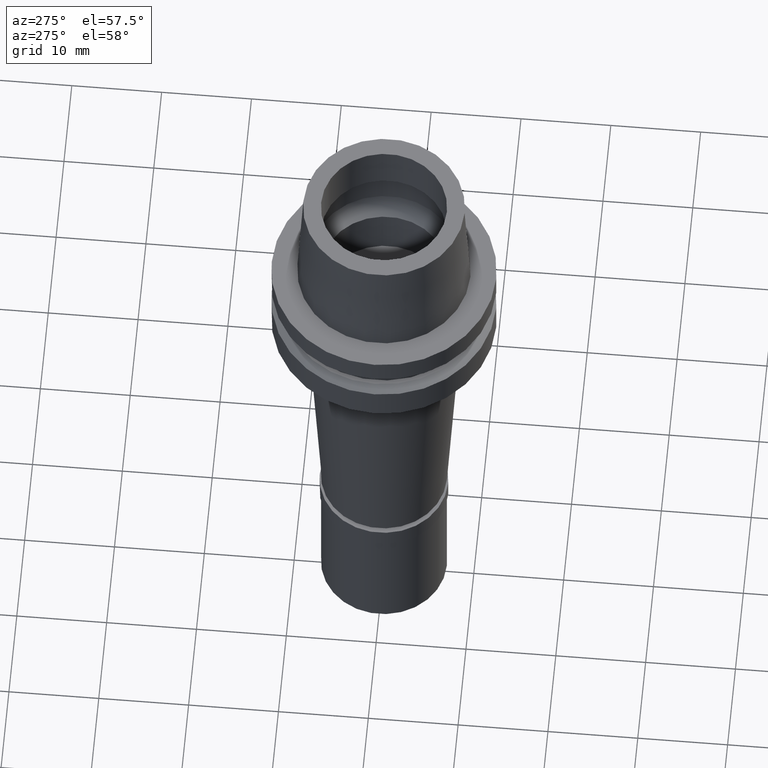
[diagram: clean part render]
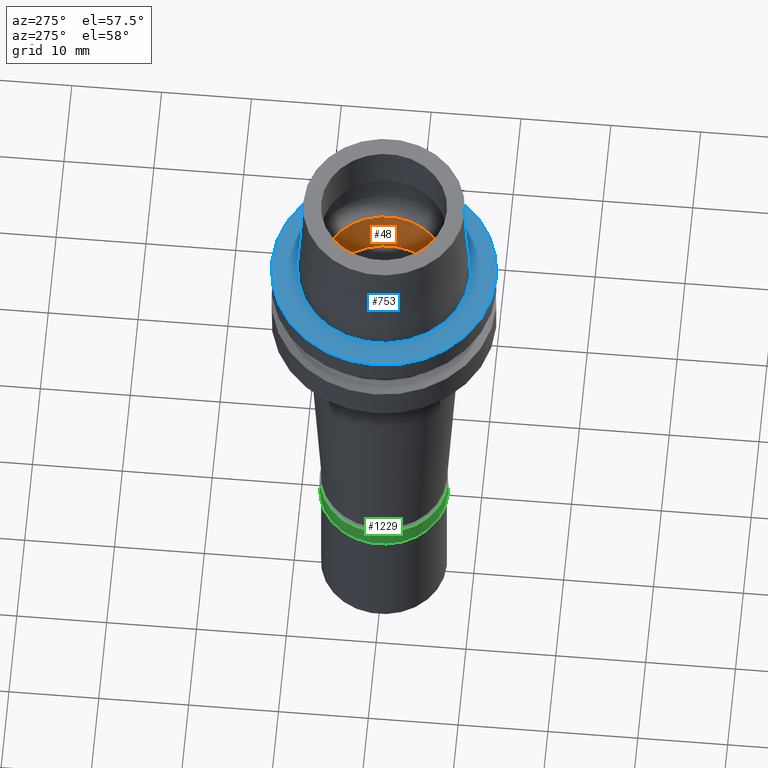
[diagram: same view with three faces highlighted in distinct colors, each labeled with its STEP entity id]
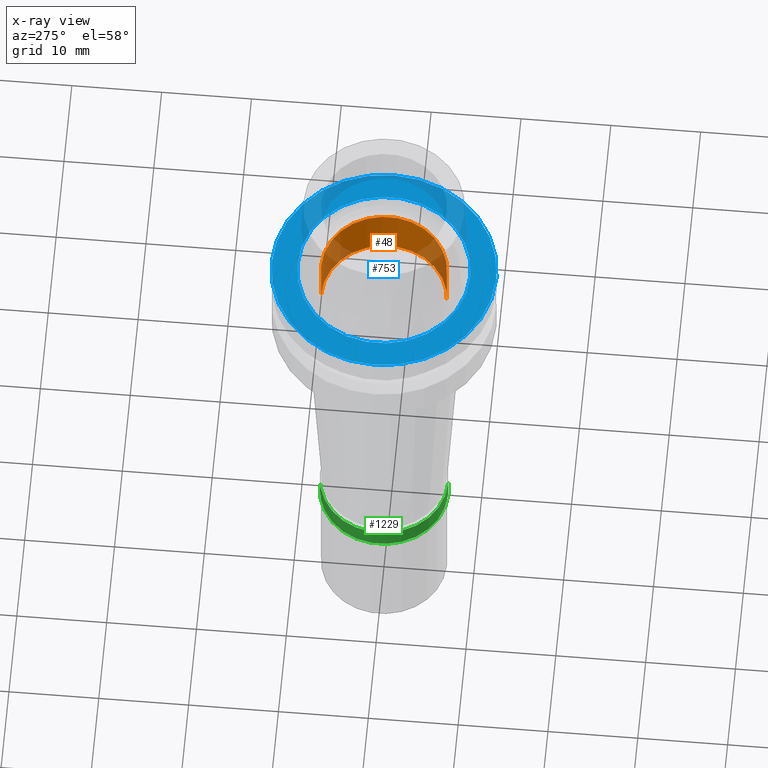
[diagram: x-ray of the same camera — body ghosted, the three highlighted faces saturated]
A machine part, auxiliary view with three faces highlighted in distinct colors.
The next image is the same camera in x-ray (body ghosted, the three faces saturated) — at least one of them is partly hidden behind the body in this view.
Their STEP definitions:

[orange] entity #48 — the highlighted cylindrical surface (partial cylindrical patch) has radius 7 mm, axis along (0, 0, 1).
#4 = EDGE_CURVE ( 'NONE', #2021, #1687, #1431, .T. ) ;
#20 = CARTESIAN_POINT ( 'NONE',  ( 0.0000000000000000000, 7.000000000000000000, -5.950000000000000178 ) ) ;
#33 = DIRECTION ( 'NONE',  ( 0.0000000000000000000, 0.0000000000000000000, 1.000000000000000000 ) ) ;
#48 = ADVANCED_FACE ( 'NONE', ( #1496 ), #1269, .F. ) ;
#57 = DIRECTION ( 'NONE',  ( 0.0000000000000000000, 0.0000000000000000000, -1.000000000000000000 ) ) ;
#117 = CARTESIAN_POINT ( 'NONE',  ( 0.0000000000000000000, -7.000000000000000000, -5.950000000000000178 ) ) ;
#245 = ORIENTED_EDGE ( 'NONE', *, *, #4, .T. ) ;
#371 = ORIENTED_EDGE ( 'NONE', *, *, #2269, .T. ) ;
#454 = EDGE_CURVE ( 'NONE', #1687, #810, #1794, .T. ) ;
#633 = VERTEX_POINT ( 'NONE', #732 ) ;
#732 = CARTESIAN_POINT ( 'NONE',  ( 0.0000000000000000000, 7.000000000000000000, -5.950000000000000178 ) ) ;
#771 = CARTESIAN_POINT ( 'NONE',  ( 0.0000000000000000000, 7.000000000000000000, 0.0000000000000000000 ) ) ;
#810 = VERTEX_POINT ( 'NONE', #771 ) ;
#812 = VECTOR ( 'NONE', #1056, 1000.000000000000000 ) ;
#933 = VECTOR ( 'NONE', #1018, 1000.000000000000000 ) ;
#1018 = DIRECTION ( 'NONE',  ( 0.0000000000000000000, 0.0000000000000000000, 1.000000000000000000 ) ) ;
#1056 = DIRECTION ( 'NONE',  ( 0.0000000000000000000, 0.0000000000000000000, 1.000000000000000000 ) ) ;
#1146 = ORIENTED_EDGE ( 'NONE', *, *, #454, .T. ) ;
#1169 = CARTESIAN_POINT ( 'NONE',  ( 0.0000000000000000000, -7.000000000000000000, -5.950000000000000178 ) ) ;
#1269 = CYLINDRICAL_SURFACE ( 'NONE', #2386, 7.000000000000000000 ) ;
#1431 = LINE ( 'NONE', #117, #812 ) ;
#1472 = CARTESIAN_POINT ( 'NONE',  ( 0.0000000000000000000, 0.0000000000000000000, 1.421085471519999843E-14 ) ) ;
#1496 = FACE_OUTER_BOUND ( 'NONE', #2425, .T. ) ;
#1504 = AXIS2_PLACEMENT_3D ( 'NONE', #2547, #57, #1962 ) ;
#1667 = DIRECTION ( 'NONE',  ( 0.0000000000000000000, -1.000000000000000000, 0.0000000000000000000 ) ) ;
#1681 = DIRECTION ( 'NONE',  ( 0.0000000000000000000, 0.0000000000000000000, 1.000000000000000000 ) ) ;
#1687 = VERTEX_POINT ( 'NONE', #2365 ) ;
#1794 = CIRCLE ( 'NONE', #2540, 7.000000000000000000 ) ;
#1962 = DIRECTION ( 'NONE',  ( 0.0000000000000000000, 1.000000000000000000, 0.0000000000000000000 ) ) ;
#1988 = ORIENTED_EDGE ( 'NONE', *, *, #2066, .F. ) ;
#2021 = VERTEX_POINT ( 'NONE', #1169 ) ;
#2066 = EDGE_CURVE ( 'NONE', #633, #810, #2494, .T. ) ;
#2097 = CARTESIAN_POINT ( 'NONE',  ( 0.0000000000000000000, 0.0000000000000000000, -59.45000000000000284 ) ) ;
#2257 = CIRCLE ( 'NONE', #1504, 7.000000000000000000 ) ;
#2269 = EDGE_CURVE ( 'NONE', #633, #2021, #2257, .T. ) ;
#2365 = CARTESIAN_POINT ( 'NONE',  ( 0.0000000000000000000, -7.000000000000000000, 0.0000000000000000000 ) ) ;
#2386 = AXIS2_PLACEMENT_3D ( 'NONE', #2097, #1681, #2521 ) ;
#2425 = EDGE_LOOP ( 'NONE', ( #371, #245, #1146, #1988 ) ) ;
#2494 = LINE ( 'NONE', #20, #933 ) ;
#2521 = DIRECTION ( 'NONE',  ( 0.0000000000000000000, 1.000000000000000000, 0.0000000000000000000 ) ) ;
#2540 = AXIS2_PLACEMENT_3D ( 'NONE', #1472, #33, #1667 ) ;
#2547 = CARTESIAN_POINT ( 'NONE',  ( 0.0000000000000000000, 0.0000000000000000000, -5.950000000000000178 ) ) ;

[blue] entity #753 — the highlighted planar face has unit normal (0, 0, 1).
#82 = EDGE_LOOP ( 'NONE', ( #1191, #539 ) ) ;
#87 = VERTEX_POINT ( 'NONE', #1754 ) ;
#136 = CARTESIAN_POINT ( 'NONE',  ( 0.0000000000000000000, 0.0000000000000000000, 2.557953848736000191E-13 ) ) ;
#193 = FACE_BOUND ( 'NONE', #82, .T. ) ;
#203 = DIRECTION ( 'NONE',  ( 0.0000000000000000000, 0.0000000000000000000, 1.000000000000000000 ) ) ;
#232 = EDGE_CURVE ( 'NONE', #2266, #87, #2103, .T. ) ;
#255 = EDGE_CURVE ( 'NONE', #87, #2266, #363, .T. ) ;
#337 = EDGE_CURVE ( 'NONE', #2570, #2457, #2323, .T. ) ;
#351 = CARTESIAN_POINT ( 'NONE',  ( 0.0000000000000000000, 0.0000000000000000000, -5.684341886080998387E-14 ) ) ;
#363 = CIRCLE ( 'NONE', #1847, 12.50000000000000000 ) ;
#450 = AXIS2_PLACEMENT_3D ( 'NONE', #1662, #203, #1275 ) ;
#539 = ORIENTED_EDGE ( 'NONE', *, *, #986, .F. ) ;
#570 = CARTESIAN_POINT ( 'NONE',  ( 0.0000000000000000000, 0.0000000000000000000, 0.0000000000000000000 ) ) ;
#753 = ADVANCED_FACE ( 'NONE', ( #2456, #193 ), #1166, .T. ) ;
#756 = CARTESIAN_POINT ( 'NONE',  ( 0.0000000000000000000, -9.624999771398000448, 1.332267629550000037E-13 ) ) ;
#802 = DIRECTION ( 'NONE',  ( 0.0000000000000000000, 0.0000000000000000000, -1.000000000000000000 ) ) ;
#838 = AXIS2_PLACEMENT_3D ( 'NONE', #570, #1406, #2009 ) ;
#920 = AXIS2_PLACEMENT_3D ( 'NONE', #351, #802, #960 ) ;
#960 = DIRECTION ( 'NONE',  ( 0.0000000000000000000, 1.000000000000000000, 0.0000000000000000000 ) ) ;
#986 = EDGE_CURVE ( 'NONE', #2457, #2570, #1017, .T. ) ;
#1017 = CIRCLE ( 'NONE', #450, 9.624999771398000448 ) ;
#1166 = PLANE ( 'NONE',  #838 ) ;
#1191 = ORIENTED_EDGE ( 'NONE', *, *, #337, .F. ) ;
#1275 = DIRECTION ( 'NONE',  ( 0.0000000000000000000, -1.000000000000000000, 0.0000000000000000000 ) ) ;
#1406 = DIRECTION ( 'NONE',  ( 0.0000000000000000000, 0.0000000000000000000, 1.000000000000000000 ) ) ;
#1590 = CARTESIAN_POINT ( 'NONE',  ( 0.0000000000000000000, 9.624999771398000448, 1.332267629550000037E-13 ) ) ;
#1605 = DIRECTION ( 'NONE',  ( 0.0000000000000000000, 1.000000000000000000, 0.0000000000000000000 ) ) ;
#1662 = CARTESIAN_POINT ( 'NONE',  ( 0.0000000000000000000, 0.0000000000000000000, 2.557953848736000191E-13 ) ) ;
#1706 = CARTESIAN_POINT ( 'NONE',  ( 0.0000000000000000000, 12.50000000000000000, -5.684341886080998387E-14 ) ) ;
#1754 = CARTESIAN_POINT ( 'NONE',  ( 0.0000000000000000000, -12.50000000000000000, -5.684341886080998387E-14 ) ) ;
#1827 = DIRECTION ( 'NONE',  ( 0.0000000000000000000, 0.0000000000000000000, 1.000000000000000000 ) ) ;
#1840 = EDGE_LOOP ( 'NONE', ( #2189, #2285 ) ) ;
#1843 = DIRECTION ( 'NONE',  ( 0.0000000000000000000, -1.000000000000000000, 0.0000000000000000000 ) ) ;
#1847 = AXIS2_PLACEMENT_3D ( 'NONE', #2274, #2025, #1843 ) ;
#2009 = DIRECTION ( 'NONE',  ( 1.000000000000000000, 0.0000000000000000000, 0.0000000000000000000 ) ) ;
#2025 = DIRECTION ( 'NONE',  ( 0.0000000000000000000, 0.0000000000000000000, -1.000000000000000000 ) ) ;
#2103 = CIRCLE ( 'NONE', #920, 12.50000000000000000 ) ;
#2189 = ORIENTED_EDGE ( 'NONE', *, *, #232, .F. ) ;
#2266 = VERTEX_POINT ( 'NONE', #1706 ) ;
#2274 = CARTESIAN_POINT ( 'NONE',  ( 0.0000000000000000000, 0.0000000000000000000, -5.684341886080998387E-14 ) ) ;
#2285 = ORIENTED_EDGE ( 'NONE', *, *, #255, .F. ) ;
#2323 = CIRCLE ( 'NONE', #2371, 9.624999771398000448 ) ;
#2371 = AXIS2_PLACEMENT_3D ( 'NONE', #136, #1827, #1605 ) ;
#2456 = FACE_OUTER_BOUND ( 'NONE', #1840, .T. ) ;
#2457 = VERTEX_POINT ( 'NONE', #756 ) ;
#2570 = VERTEX_POINT ( 'NONE', #1590 ) ;

[green] entity #1229 — the highlighted cylindrical surface (partial cylindrical patch) has radius 7.15 mm, axis along (0, 0, 1).
#108 = VERTEX_POINT ( 'NONE', #950 ) ;
#129 = ORIENTED_EDGE ( 'NONE', *, *, #1919, .T. ) ;
#167 = CARTESIAN_POINT ( 'NONE',  ( 0.0000000000000000000, 0.0000000000000000000, 1.776356839399999922E-14 ) ) ;
#271 = FACE_OUTER_BOUND ( 'NONE', #344, .T. ) ;
#344 = EDGE_LOOP ( 'NONE', ( #1178, #695, #129, #495 ) ) ;
#369 = AXIS2_PLACEMENT_3D ( 'NONE', #2146, #518, #1540 ) ;
#495 = ORIENTED_EDGE ( 'NONE', *, *, #1650, .T. ) ;
#498 = VECTOR ( 'NONE', #2579, 1000.000000000000000 ) ;
#518 = DIRECTION ( 'NONE',  ( 0.0000000000000000000, 0.0000000000000000000, 1.000000000000000000 ) ) ;
#546 = DIRECTION ( 'NONE',  ( 0.0000000000000000000, 0.0000000000000000000, -1.000000000000000000 ) ) ;
#695 = ORIENTED_EDGE ( 'NONE', *, *, #1393, .F. ) ;
#698 = DIRECTION ( 'NONE',  ( 0.0000000000000000000, 1.000000000000000000, 0.0000000000000000000 ) ) ;
#716 = AXIS2_PLACEMENT_3D ( 'NONE', #167, #546, #1769 ) ;
#839 = CARTESIAN_POINT ( 'NONE',  ( 0.0000000000000000000, 7.150000000000000355, 0.0000000000000000000 ) ) ;
#950 = CARTESIAN_POINT ( 'NONE',  ( 0.0000000000000000000, 7.150000000000000355, 1.776356839399999922E-14 ) ) ;
#1100 = LINE ( 'NONE', #1528, #498 ) ;
#1109 = CARTESIAN_POINT ( 'NONE',  ( 0.0000000000000000000, 0.0000000000000000000, -17.85000000000000142 ) ) ;
#1144 = CARTESIAN_POINT ( 'NONE',  ( 0.0000000000000000000, -7.150000000000000355, 1.776356839399999922E-14 ) ) ;
#1175 = VERTEX_POINT ( 'NONE', #1914 ) ;
#1178 = ORIENTED_EDGE ( 'NONE', *, *, #1659, .T. ) ;
#1229 = ADVANCED_FACE ( 'NONE', ( #271 ), #1509, .T. ) ;
#1393 = EDGE_CURVE ( 'NONE', #1765, #1175, #1100, .T. ) ;
#1509 = CYLINDRICAL_SURFACE ( 'NONE', #2031, 7.150000000000000355 ) ;
#1528 = CARTESIAN_POINT ( 'NONE',  ( 0.0000000000000000000, -7.150000000000000355, 0.0000000000000000000 ) ) ;
#1540 = DIRECTION ( 'NONE',  ( 0.0000000000000000000, 1.000000000000000000, 0.0000000000000000000 ) ) ;
#1650 = EDGE_CURVE ( 'NONE', #108, #2616, #2089, .T. ) ;
#1659 = EDGE_CURVE ( 'NONE', #2616, #1175, #1852, .T. ) ;
#1683 = DIRECTION ( 'NONE',  ( 0.0000000000000000000, 0.0000000000000000000, -1.000000000000000000 ) ) ;
#1713 = VECTOR ( 'NONE', #1683, 1000.000000000000000 ) ;
#1765 = VERTEX_POINT ( 'NONE', #1144 ) ;
#1769 = DIRECTION ( 'NONE',  ( 0.0000000000000000000, -1.000000000000000000, 0.0000000000000000000 ) ) ;
#1852 = CIRCLE ( 'NONE', #369, 7.150000000000000355 ) ;
#1914 = CARTESIAN_POINT ( 'NONE',  ( 0.0000000000000000000, -7.150000000000000355, -2.299999999999999822 ) ) ;
#1919 = EDGE_CURVE ( 'NONE', #1765, #108, #2511, .T. ) ;
#1943 = DIRECTION ( 'NONE',  ( 0.0000000000000000000, 0.0000000000000000000, 1.000000000000000000 ) ) ;
#2031 = AXIS2_PLACEMENT_3D ( 'NONE', #1109, #1943, #698 ) ;
#2089 = LINE ( 'NONE', #839, #1713 ) ;
#2146 = CARTESIAN_POINT ( 'NONE',  ( 0.0000000000000000000, 0.0000000000000000000, -2.299999999999999822 ) ) ;
#2184 = CARTESIAN_POINT ( 'NONE',  ( 0.0000000000000000000, 7.150000000000000355, -2.299999999999999822 ) ) ;
#2511 = CIRCLE ( 'NONE', #716, 7.150000000000000355 ) ;
#2579 = DIRECTION ( 'NONE',  ( 0.0000000000000000000, 0.0000000000000000000, -1.000000000000000000 ) ) ;
#2616 = VERTEX_POINT ( 'NONE', #2184 ) ;